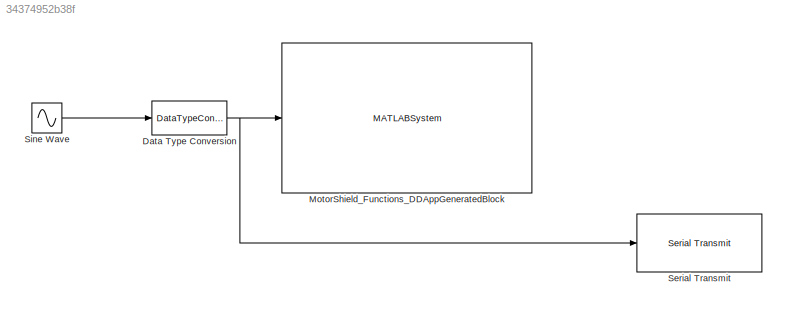
MODEL slx_34374952b38f
KIND model
CONFIG AbsTol = auto
CONFIG EnableMultiTasking = on
CONFIG FixedStep = auto
CONFIG MaxStep = auto
CONFIG MinStep = auto
CONFIG RelTol = 1e-3
CONFIG SampleTimeConstraint = Unconstrained
CONFIG SolverName = FixedStepAuto
CONFIG StartTime = 0.0
CONFIG StopTime = inf
BLOCK [DataTypeConversion] Data Type Conversion
  OutDataTypeStr = uint8
  RndMeth = Floor
  SaturateOnIntegerOverflow = off
BLOCK [MATLABSystem] MotorShield_Functions_DDAppGeneratedBlock
  MaskDisplay = color('white');plot([100,100,100,100]*1,[100,100,100,100]*1);plot([100,100,100,100]*0,[100,100,100,100]*0);color('blue');text(38, 92, 'IO Device Builder','horizontalAlignment', 'right');\ncolor('black');text(52,50,' MotorShield_Functions','horizontalAlignment','center');\nport_label('input',1,'Speed');
  MaskType = MotorShield_Functions
  SampleTime = -1
  System = MotorShield_Functions
BLOCK [Reference] Serial Transmit  REF=arduinolib/Serial Transmit
  SourceBlock = arduinolib/Serial Transmit
  SourceType = Arduino Serial Transmit
BLOCK [Sin] Sine Wave
  Amplitude = 128
  Bias = 128
  Frequency = 0.2
  SampleTime = 0
NET Data Type Conversion:1 -> MotorShield_Functions_DDAppGeneratedBlock:1, Serial Transmit:1
LINE Sine Wave:1 -> Data Type Conversion:1
note: NET lines group one-source signal fan-out (src -> all destinations, sorted); 1:1 wires keep LINE
